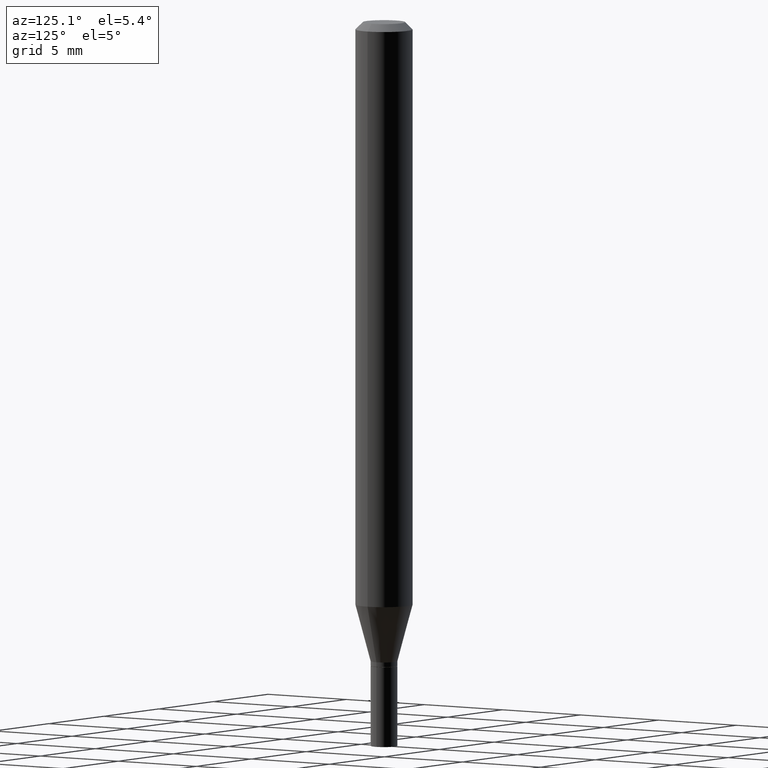
[diagram: clean part render]
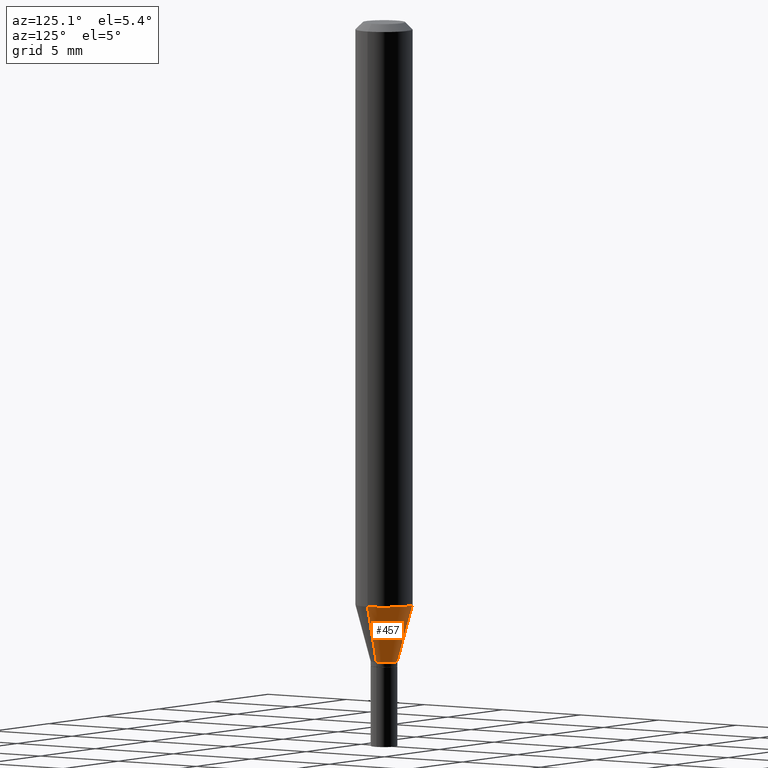
[diagram: same view with one face highlighted and labeled with its STEP entity id]
A machine part, auxiliary view. The second image highlights one B-rep face of the part: STEP entity #457.
In plain terms, the highlighted conical surface has half-angle 15 deg.
Its self-contained STEP definition (entity closure, byte-faithful):
#30 = ORIENTED_EDGE ( 'NONE', *, *, #427, .T. ) ;
#31 = VERTEX_POINT ( 'NONE', #284 ) ;
#40 = CIRCLE ( 'NONE', #153, 0.05904999999999999832 ) ;
#42 = DIRECTION ( 'NONE',  ( 0.2588190451025213501, 1.565188264969621968E-15, 0.9659258262890682012 ) ) ;
#44 = FACE_OUTER_BOUND ( 'NONE', #67, .T. ) ;
#50 = EDGE_CURVE ( 'NONE', #311, #282, #40, .T. ) ;
#53 = CARTESIAN_POINT ( 'NONE',  ( -0.05905000000000000526, -3.794783544832691928E-15, -1.207040399561580157 ) ) ;
#60 = VECTOR ( 'NONE', #42, 39.37007874015747433 ) ;
#65 = AXIS2_PLACEMENT_3D ( 'NONE', #441, #86, #179 ) ;
#67 = EDGE_LOOP ( 'NONE', ( #342, #30, #423, #384 ) ) ;
#76 = LINE ( 'NONE', #444, #233 ) ;
#86 = DIRECTION ( 'NONE',  ( -2.445468806185136597E-29, 3.491481338843145583E-15, 1.000000000000000000 ) ) ;
#112 = CARTESIAN_POINT ( 'NONE',  ( 0.05905000000000000526, -4.626702976416405553E-15, -1.207040399561580157 ) ) ;
#114 = CONICAL_SURFACE ( 'NONE', #65, 0.02754999999999992524, 0.2617993877991500740 ) ;
#116 = DIRECTION ( 'NONE',  ( -0.2588190451025213501, 5.211531920934551042E-15, 0.9659258262890682012 ) ) ;
#138 = VERTEX_POINT ( 'NONE', #229 ) ;
#153 = AXIS2_PLACEMENT_3D ( 'NONE', #323, #322, #458 ) ;
#178 = DIRECTION ( 'NONE',  ( -2.445468806185136597E-29, 3.491481338843145583E-15, 1.000000000000000000 ) ) ;
#179 = DIRECTION ( 'NONE',  ( 1.000000000000000000, -6.982962677686275388E-15, 0.000000000000000000 ) ) ;
#186 = CARTESIAN_POINT ( 'NONE',  ( 0.02754999999999992524, -4.817196803201886274E-15, -1.324599999999999778 ) ) ;
#209 = EDGE_CURVE ( 'NONE', #31, #138, #347, .T. ) ;
#229 = CARTESIAN_POINT ( 'NONE',  ( -0.02754999999999992524, -4.111922601281208218E-15, -1.324599999999999778 ) ) ;
#233 = VECTOR ( 'NONE', #116, 39.37007874015747433 ) ;
#282 = VERTEX_POINT ( 'NONE', #53 ) ;
#284 = CARTESIAN_POINT ( 'NONE',  ( 0.02754999999999992524, -4.817196803201886274E-15, -1.324599999999999778 ) ) ;
#311 = VERTEX_POINT ( 'NONE', #112 ) ;
#322 = DIRECTION ( 'NONE',  ( -2.445468806185136597E-29, 3.491481338843145583E-15, 1.000000000000000000 ) ) ;
#323 = CARTESIAN_POINT ( 'NONE',  ( 2.951779644933087895E-29, -4.214359030299031421E-15, -1.207040399561580157 ) ) ;
#340 = LINE ( 'NONE', #186, #60 ) ;
#342 = ORIENTED_EDGE ( 'NONE', *, *, #209, .T. ) ;
#347 = CIRCLE ( 'NONE', #388, 0.02754999999999992524 ) ;
#351 = EDGE_CURVE ( 'NONE', #31, #311, #340, .T. ) ;
#362 = DIRECTION ( 'NONE',  ( 1.000000000000000000, -6.982962677686275388E-15, 0.000000000000000000 ) ) ;
#384 = ORIENTED_EDGE ( 'NONE', *, *, #351, .F. ) ;
#388 = AXIS2_PLACEMENT_3D ( 'NONE', #442, #178, #362 ) ;
#423 = ORIENTED_EDGE ( 'NONE', *, *, #50, .F. ) ;
#427 = EDGE_CURVE ( 'NONE', #138, #282, #76, .T. ) ;
#441 = CARTESIAN_POINT ( 'NONE',  ( 3.239267980672831637E-29, -4.624816181431630270E-15, -1.324599999999999778 ) ) ;
#442 = CARTESIAN_POINT ( 'NONE',  ( 3.239267980672831637E-29, -4.624816181431630270E-15, -1.324599999999999778 ) ) ;
#444 = CARTESIAN_POINT ( 'NONE',  ( -0.02754999999999992524, -4.429061657729722929E-15, -1.324599999999999778 ) ) ;
#457 = ADVANCED_FACE ( 'NONE', ( #44 ), #114, .T. ) ;
#458 = DIRECTION ( 'NONE',  ( 1.000000000000000000, -6.982962677686265133E-15, 0.000000000000000000 ) ) ;